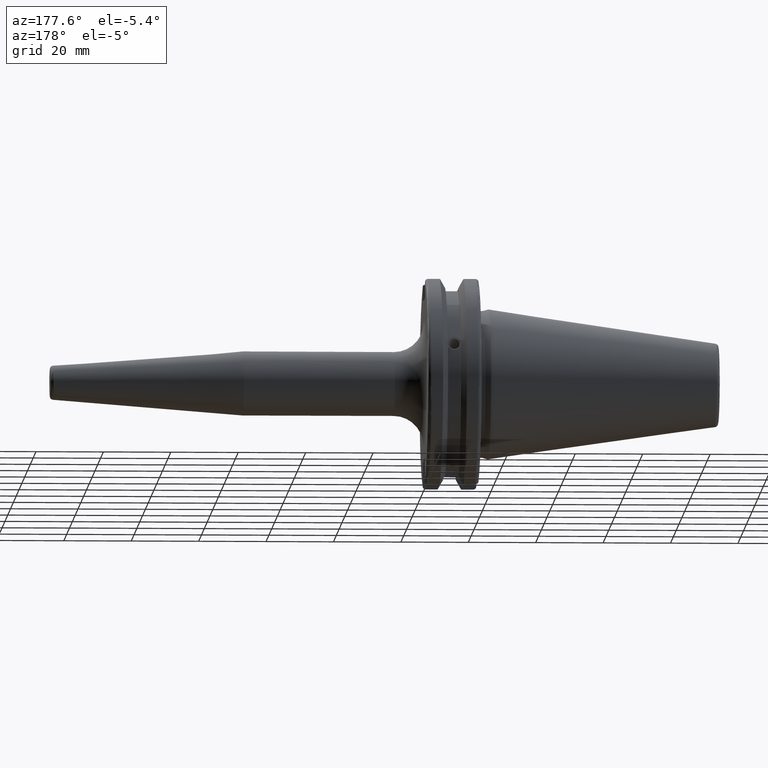
[diagram: clean part render]
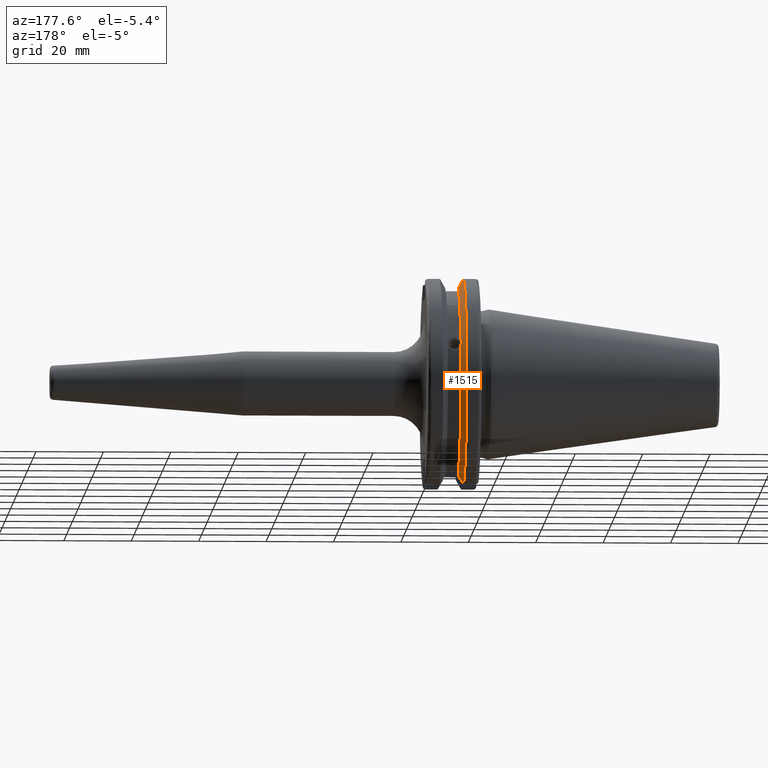
[diagram: same view with one face highlighted and labeled with its STEP entity id]
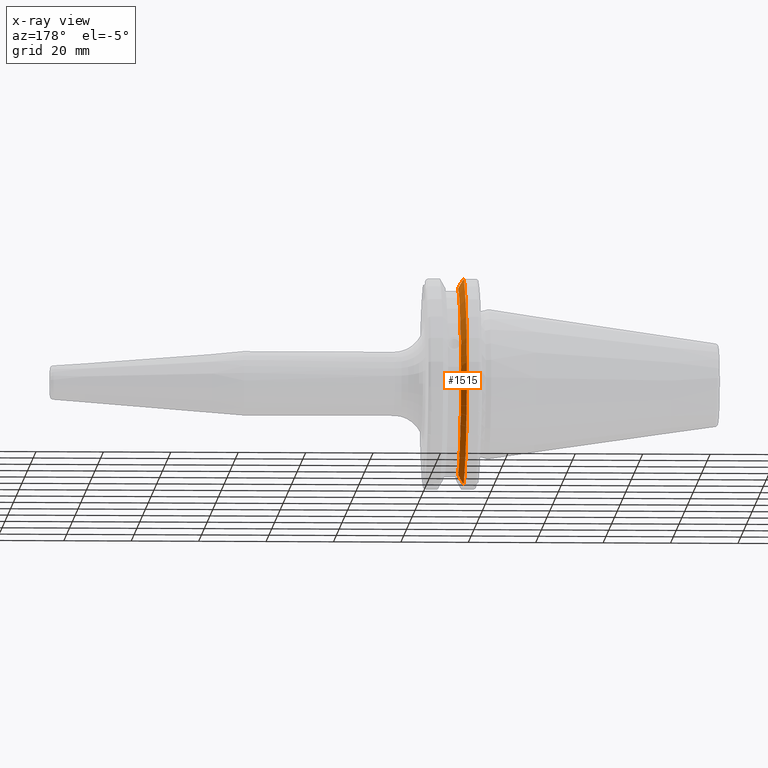
[diagram: x-ray of the same camera — body ghosted, the highlighted face saturated]
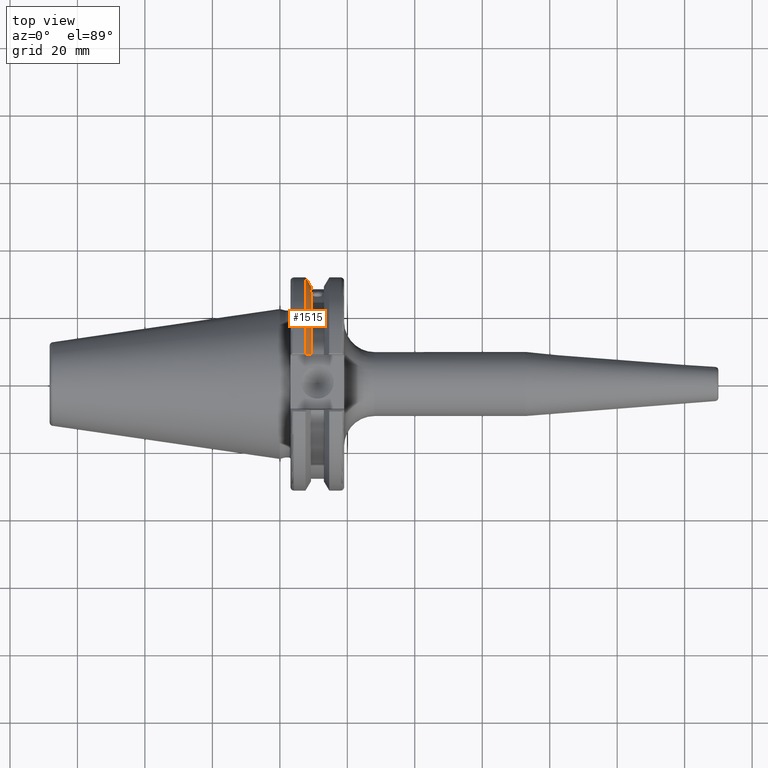
[diagram: same view with one face highlighted and labeled with its STEP entity id]
A machine part, auxiliary view. The second image highlights one B-rep face of the part: STEP entity #1515.
The next image is the same camera in x-ray: the body ghosted, the highlighted face saturated — about 0% of this face is hidden behind the body in this view.
A second angle (top view) of the same face is appended — the face is thin or edge-on in the first view.
In plain terms, the highlighted conical surface has half-angle 60 deg.
Its self-contained STEP definition (entity closure, byte-faithful):
#19=(
BOUNDED_CURVE()
B_SPLINE_CURVE(2,(#2637,#2638,#2639),.UNSPECIFIED.,.F.,.F.)
B_SPLINE_CURVE_WITH_KNOTS((3,3),(0.,0.276549142796136),.UNSPECIFIED.)
CURVE()
GEOMETRIC_REPRESENTATION_ITEM()
RATIONAL_B_SPLINE_CURVE((1.,1.00095203903316,1.00031614444813))
REPRESENTATION_ITEM('')
);
#20=(
BOUNDED_CURVE()
B_SPLINE_CURVE(2,(#2641,#2642,#2643),.UNSPECIFIED.,.F.,.F.)
B_SPLINE_CURVE_WITH_KNOTS((3,3),(0.,0.0639048713676127),.UNSPECIFIED.)
CURVE()
GEOMETRIC_REPRESENTATION_ITEM()
RATIONAL_B_SPLINE_CURVE((1.,1.00028444218281,1.00047644010571))
REPRESENTATION_ITEM('')
);
#21=(
BOUNDED_CURVE()
B_SPLINE_CURVE(2,(#2647,#2648,#2649),.UNSPECIFIED.,.F.,.F.)
B_SPLINE_CURVE_WITH_KNOTS((3,3),(0.329353533631191,0.393258405001024),
 .UNSPECIFIED.)
CURVE()
GEOMETRIC_REPRESENTATION_ITEM()
RATIONAL_B_SPLINE_CURVE((1.00047644010564,1.00028444218277,1.))
REPRESENTATION_ITEM('')
);
#22=(
BOUNDED_CURVE()
B_SPLINE_CURVE(2,(#2651,#2652,#2653),.UNSPECIFIED.,.F.,.F.)
B_SPLINE_CURVE_WITH_KNOTS((3,3),(0.0550586467391943,0.33160778953585),
 .UNSPECIFIED.)
CURVE()
GEOMETRIC_REPRESENTATION_ITEM()
RATIONAL_B_SPLINE_CURVE((1.00031614445155,1.00095203904346,1.))
REPRESENTATION_ITEM('')
);
#60=B_SPLINE_CURVE_WITH_KNOTS('',3,(#2590,#2591,#2592,#2593,#2594,#2595,
#2596,#2597,#2598,#2599,#2600,#2601,#2602,#2603),.UNSPECIFIED.,.F.,.F.,
(4,2,2,2,2,2,4),(0.451995700189024,0.464547828547661,0.504528771685166,
0.544509714822672,0.584490657960177,0.624471601097683,0.637023729456319),
 .UNSPECIFIED.);
#355=CONICAL_SURFACE('',#1676,30.3546886482472,1.0471975511966);
#395=FACE_OUTER_BOUND('',#489,.T.);
#489=EDGE_LOOP('',(#1189,#1190,#1191,#1192,#1193,#1194,#1195,#1196));
#586=CIRCLE('',#1677,28.9593772964944);
#587=CIRCLE('',#1678,31.75);
#588=CIRCLE('',#1679,28.9593772964944);
#701=VERTEX_POINT('',#2587);
#702=VERTEX_POINT('',#2589);
#706=VERTEX_POINT('',#2634);
#707=VERTEX_POINT('',#2636);
#708=VERTEX_POINT('',#2640);
#709=VERTEX_POINT('',#2644);
#710=VERTEX_POINT('',#2646);
#711=VERTEX_POINT('',#2650);
#882=EDGE_CURVE('',#702,#701,#60,.T.);
#887=EDGE_CURVE('',#706,#701,#586,.T.);
#888=EDGE_CURVE('',#706,#707,#19,.T.);
#889=EDGE_CURVE('',#708,#707,#20,.T.);
#890=EDGE_CURVE('',#708,#709,#587,.T.);
#891=EDGE_CURVE('',#710,#709,#21,.T.);
#892=EDGE_CURVE('',#710,#711,#22,.T.);
#893=EDGE_CURVE('',#702,#711,#588,.T.);
#1189=ORIENTED_EDGE('',*,*,#882,.T.);
#1190=ORIENTED_EDGE('',*,*,#887,.F.);
#1191=ORIENTED_EDGE('',*,*,#888,.T.);
#1192=ORIENTED_EDGE('',*,*,#889,.F.);
#1193=ORIENTED_EDGE('',*,*,#890,.T.);
#1194=ORIENTED_EDGE('',*,*,#891,.F.);
#1195=ORIENTED_EDGE('',*,*,#892,.T.);
#1196=ORIENTED_EDGE('',*,*,#893,.F.);
#1515=ADVANCED_FACE('',(#395),#355,.T.);
#1676=AXIS2_PLACEMENT_3D('',#2633,#1979,#1980);
#1677=AXIS2_PLACEMENT_3D('',#2635,#1981,#1982);
#1678=AXIS2_PLACEMENT_3D('',#2645,#1983,#1984);
#1679=AXIS2_PLACEMENT_3D('',#2654,#1985,#1986);
#1979=DIRECTION('center_axis',(-1.,0.,0.));
#1980=DIRECTION('ref_axis',(0.,1.,0.));
#1981=DIRECTION('center_axis',(1.,0.,0.));
#1982=DIRECTION('ref_axis',(0.,0.,-1.));
#1983=DIRECTION('center_axis',(1.,0.,0.));
#1984=DIRECTION('ref_axis',(0.,0.,-1.));
#1985=DIRECTION('center_axis',(1.,0.,0.));
#1986=DIRECTION('ref_axis',(0.,0.,-1.));
#2587=CARTESIAN_POINT('',(9.2191,27.4956274489925,9.09043478536247));
#2589=CARTESIAN_POINT('',(9.2191,26.9060914640648,10.7101715919071));
#2590=CARTESIAN_POINT('Ctrl Pts',(9.2191,26.9060914640648,10.7101715919071));
#2591=CARTESIAN_POINT('Ctrl Pts',(9.20497959280038,26.9406927482839,10.6893765730703));
#2592=CARTESIAN_POINT('Ctrl Pts',(9.19150701821434,26.9744191989197,10.6676007180674));
#2593=CARTESIAN_POINT('Ctrl Pts',(9.13811855884095,27.1113422433188,10.5723885976054));
#2594=CARTESIAN_POINT('Ctrl Pts',(9.09998029158246,27.2180531796526,10.4801333026531));
#2595=CARTESIAN_POINT('Ctrl Pts',(9.04778935539424,27.3968610665578,10.2639559818059));
#2596=CARTESIAN_POINT('Ctrl Pts',(9.0341,27.4684373304961,10.139516340139));
#2597=CARTESIAN_POINT('Ctrl Pts',(9.0341,27.559599249844,9.88905102521651));
#2598=CARTESIAN_POINT('Ctrl Pts',(9.04778935539424,27.5847569104122,9.74771639360672));
#2599=CARTESIAN_POINT('Ctrl Pts',(9.09998029158246,27.5867382255984,9.46717946402648));
#2600=CARTESIAN_POINT('Ctrl Pts',(9.13811855884095,27.5642934663232,9.32791534028656));
#2601=CARTESIAN_POINT('Ctrl Pts',(9.19150701821434,27.5206055003512,9.16696618806878));
#2602=CARTESIAN_POINT('Ctrl Pts',(9.20497959280038,27.5087667900418,9.12860597076219));
#2603=CARTESIAN_POINT('Ctrl Pts',(9.21909999999999,27.4956274489925,9.09043478536247));
#2633=CARTESIAN_POINT('Origin',(8.41351661546218,0.,0.));
#2634=CARTESIAN_POINT('',(9.2191,8.19,-27.7771386827498));
#2635=CARTESIAN_POINT('Origin',(9.2191,0.,0.));
#2636=CARTESIAN_POINT('',(7.88668530351257,8.19,-30.1755016258903));
#2637=CARTESIAN_POINT('Ctrl Pts',(9.2191,8.19,-27.7771386827498));
#2638=CARTESIAN_POINT('Ctrl Pts',(8.58046356152393,8.19,-28.9303689539705));
#2639=CARTESIAN_POINT('Ctrl Pts',(7.88668530351257,8.19,-30.1755016258903));
#2640=CARTESIAN_POINT('',(7.60793323092436,8.67204822802685,-30.5427254764662));
#2641=CARTESIAN_POINT('Ctrl Pts',(7.60793323092436,8.67204822802686,-30.5427254764662));
#2642=CARTESIAN_POINT('Ctrl Pts',(7.74899148121627,8.42917748262647,-30.357706789263));
#2643=CARTESIAN_POINT('Ctrl Pts',(7.88668530351257,8.19,-30.1755016258903));
#2644=CARTESIAN_POINT('',(7.60793323092436,8.67204822802685,30.5427254764662));
#2645=CARTESIAN_POINT('Origin',(7.60793323092436,0.,0.));
#2646=CARTESIAN_POINT('',(7.88668530351256,8.19,30.1755016258903));
#2647=CARTESIAN_POINT('Ctrl Pts',(7.88668530351256,8.19,30.1755016258903));
#2648=CARTESIAN_POINT('Ctrl Pts',(7.74899148121158,8.42917748263469,30.3577067892692));
#2649=CARTESIAN_POINT('Ctrl Pts',(7.60793323092436,8.67204822802686,30.5427254764662));
#2650=CARTESIAN_POINT('',(9.2191,8.19,27.7771386827498));
#2651=CARTESIAN_POINT('Ctrl Pts',(7.88668530351256,8.19,30.1755016258903));
#2652=CARTESIAN_POINT('Ctrl Pts',(8.58046356152345,8.19,28.9303689539713));
#2653=CARTESIAN_POINT('Ctrl Pts',(9.2191,8.19,27.7771386827498));
#2654=CARTESIAN_POINT('Origin',(9.2191,0.,0.));